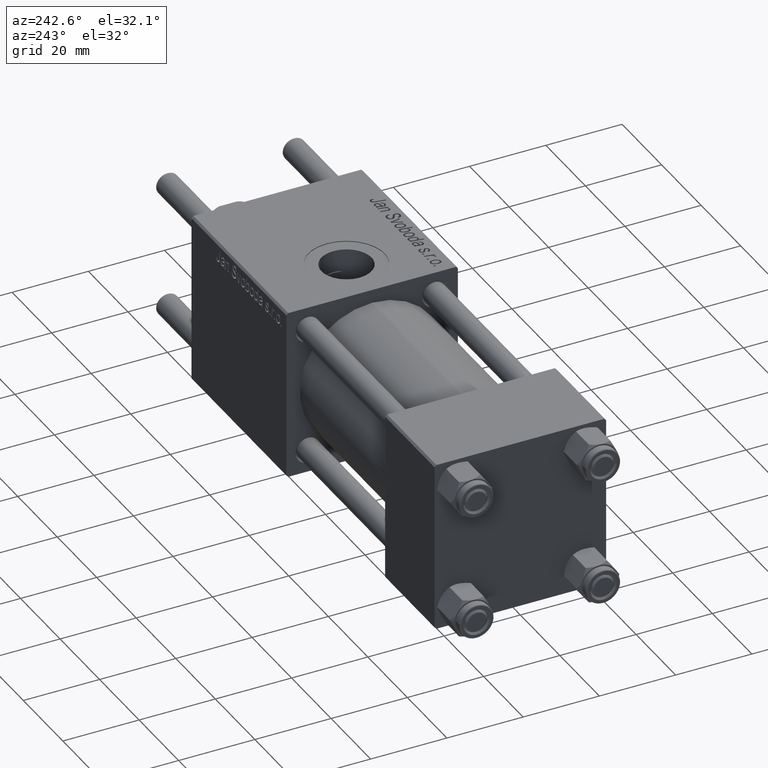
[diagram: clean part render]
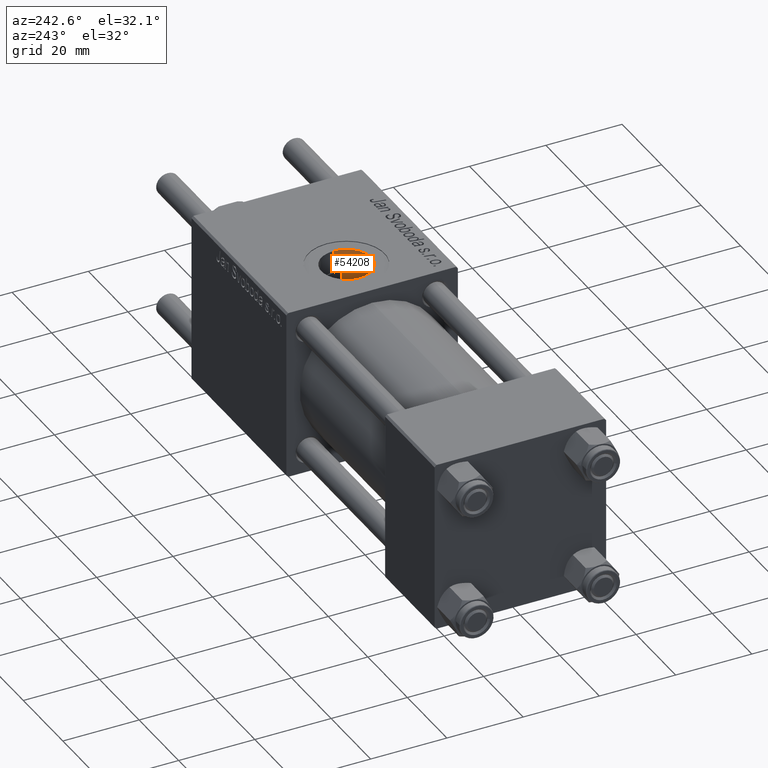
[diagram: same view with one face highlighted and labeled with its STEP entity id]
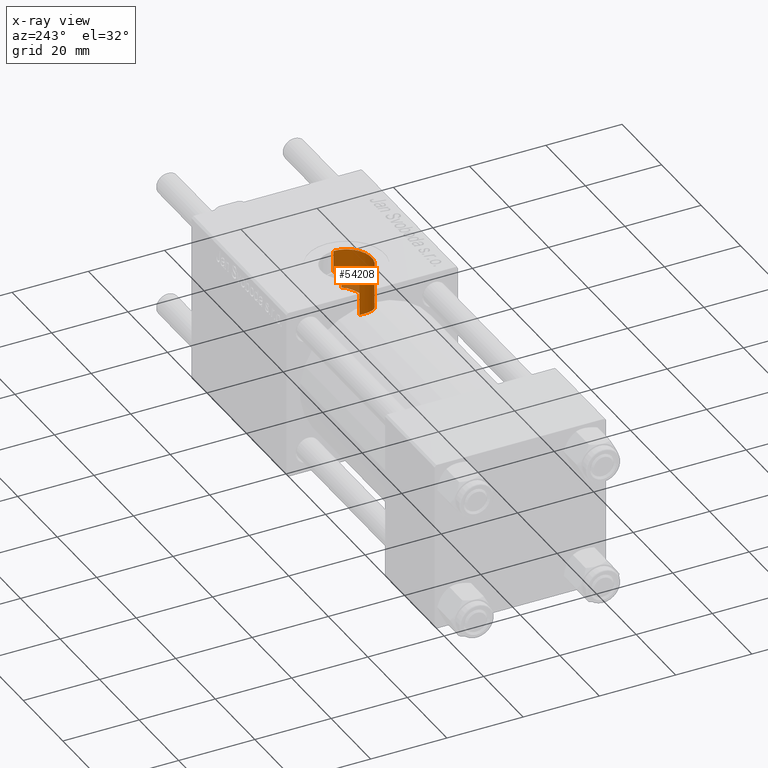
[diagram: x-ray of the same camera — body ghosted, the highlighted face saturated]
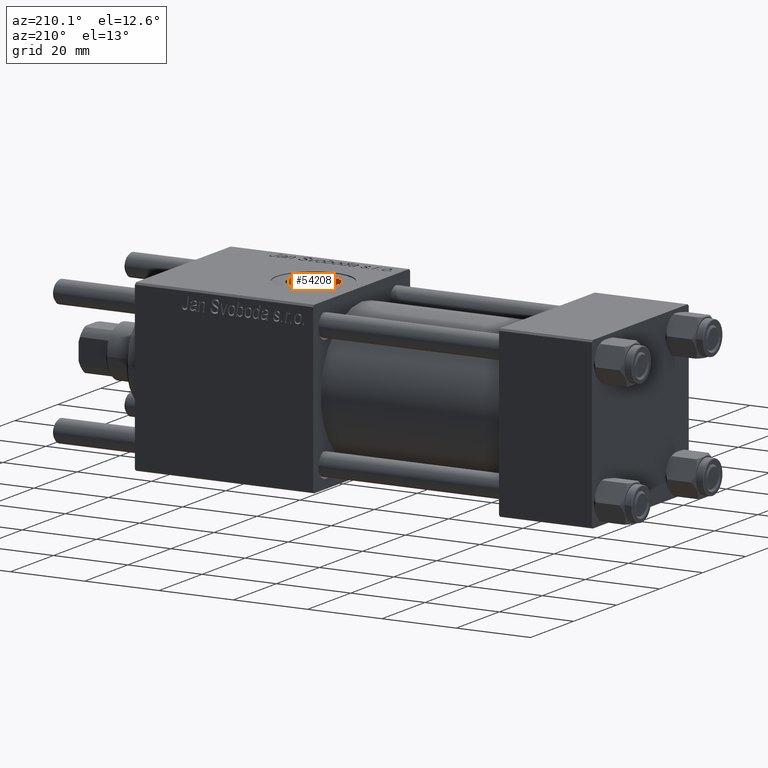
[diagram: same view with one face highlighted and labeled with its STEP entity id]
A machine part, auxiliary view. The second image highlights one B-rep face of the part: STEP entity #54208.
The next image is the same camera in x-ray: the body ghosted, the highlighted face saturated — about 6% of this face is hidden behind the body in this view.
A second angle (auxiliary view) of the same face is appended — the face is thin or edge-on in the first view.
In plain terms, the highlighted cylindrical surface (edge-blend (fillet) strip) has radius 6.58 mm, axis along (0, 0, -1).
Its self-contained STEP definition (entity closure, byte-faithful):
#70 = CARTESIAN_POINT ( 'NONE',  ( 94.30000000000001137, -1.899052395275089067, 45.29999999999999005 ) ) ;
#785 = CARTESIAN_POINT ( 'NONE',  ( 91.24045236004087656, -5.739740685217730842, 10.54091119589231518 ) ) ;
#1071 = CARTESIAN_POINT ( 'NONE',  ( 82.56220931812610786, -3.710026521228334317, 11.41328489595128914 ) ) ;
#1212 = EDGE_LOOP ( 'NONE', ( #17766, #36793, #4599, #27628, #25232, #18845 ) ) ;
#1348 = CARTESIAN_POINT ( 'NONE',  ( 81.60938533297500896, -1.579837376672096338, 11.89712204425859454 ) ) ;
#1994 = DIRECTION ( 'NONE',  ( 1.000000000000000000, 0.000000000000000000, 0.000000000000000000 ) ) ;
#2256 = B_SPLINE_CURVE_WITH_KNOTS ( 'NONE', 3,
 ( #33210, #38102, #47621, #16206, #3279, #12206 ),
 .UNSPECIFIED., .F., .F.,
 ( 4, 2, 4 ),
 ( 0.001922561461481083313, 0.002880296703329207012, 0.003838031945177331362 ),
 .UNSPECIFIED. ) ;
#2720 = CARTESIAN_POINT ( 'NONE',  ( 88.63868773215152430, -6.560960036370746984, 10.04759214048445948 ) ) ;
#3279 = CARTESIAN_POINT ( 'NONE',  ( 94.39288924062448416, -1.590897540048193504, 16.42605488887726395 ) ) ;
#4492 = DIRECTION ( 'NONE',  ( 0.000000000000000000, 0.000000000000000000, -1.000000000000000000 ) ) ;
#4599 = ORIENTED_EDGE ( 'NONE', *, *, #55208, .T. ) ;
#4948 = CARTESIAN_POINT ( 'NONE',  ( 81.42000000000000171, 1.469576107744199801E-15, 12.00000000000000178 ) ) ;
#5400 = CARTESIAN_POINT ( 'NONE',  ( 84.48210468445526544, -5.574052804316229626, 10.62898043420413252 ) ) ;
#6200 = VECTOR ( 'NONE', #4492, 1000.000000000000000 ) ;
#7039 = CARTESIAN_POINT ( 'NONE',  ( 93.68578075181308407, -3.334439790209559717, 11.53293512199652149 ) ) ;
#7191 = AXIS2_PLACEMENT_3D ( 'NONE', #30083, #47678, #8239 ) ;
#7371 = CIRCLE ( 'NONE', #35813, 6.580000000000002736 ) ;
#7923 = CARTESIAN_POINT ( 'NONE',  ( 94.58000000000001251, 2.020172399822898567E-15, 16.50000000000000000 ) ) ;
#8239 = DIRECTION ( 'NONE',  ( -1.000000000000000000, 0.000000000000000000, 0.000000000000000000 ) ) ;
#9425 = CARTESIAN_POINT ( 'NONE',  ( 94.30000000000001137, -1.899052395275089067, 11.84878052796995718 ) ) ;
#10010 = CARTESIAN_POINT ( 'NONE',  ( 87.44221154047806976, -6.559398433601089984, 10.04860498654694823 ) ) ;
#11088 = CARTESIAN_POINT ( 'NONE',  ( 82.15480420465904388, -3.046487603127518984, 11.61204766141661793 ) ) ;
#12206 = CARTESIAN_POINT ( 'NONE',  ( 94.30000000000001137, -1.899052395275089067, 16.39035081991840670 ) ) ;
#13049 = VECTOR ( 'NONE', #17705, 1000.000000000000000 ) ;
#13970 = LINE ( 'NONE', #27209, #13049 ) ;
#14010 = CARTESIAN_POINT ( 'NONE',  ( 82.78969099161481893, -4.023250467623474158, 11.30667168441424941 ) ) ;
#14292 = CARTESIAN_POINT ( 'NONE',  ( 81.98561383412463499, -2.697465198051460789, 11.69882456468388376 ) ) ;
#14338 = EDGE_CURVE ( 'NONE', #50008, #25642, #47885, .T. ) ;
#14588 = CARTESIAN_POINT ( 'NONE',  ( 90.90036750558618905, -5.918981686858812985, 10.44010423036056778 ) ) ;
#14969 = CARTESIAN_POINT ( 'NONE',  ( 94.30000000000001137, -1.899052395275089067, 16.39035081991840670 ) ) ;
#15659 = CARTESIAN_POINT ( 'NONE',  ( 91.88529033867185092, -5.313933040936652752, 10.76007628214585132 ) ) ;
#16206 = CARTESIAN_POINT ( 'NONE',  ( 94.46252323665211748, -1.278516620530523173, 16.45344826064652466 ) ) ;
#17606 = DIRECTION ( 'NONE',  ( -0.000000000000000000, -0.000000000000000000, 1.000000000000000000 ) ) ;
#17705 = DIRECTION ( 'NONE',  ( 0.000000000000000000, 0.000000000000000000, -1.000000000000000000 ) ) ;
#17766 = ORIENTED_EDGE ( 'NONE', *, *, #35531, .F. ) ;
#18324 = CARTESIAN_POINT ( 'NONE',  ( 86.26571117503740993, -6.359577037598437954, 10.17731036340830997 ) ) ;
#18599 = CARTESIAN_POINT ( 'NONE',  ( 93.47922161013028131, -3.663950190651517502, 11.43164576559327905 ) ) ;
#18845 = ORIENTED_EDGE ( 'NONE', *, *, #48524, .F. ) ;
#18884 = CARTESIAN_POINT ( 'NONE',  ( 81.56395315102130894, -1.383303317825534062, 11.92163510970724971 ) ) ;
#19478 = B_SPLINE_CURVE_WITH_KNOTS ( 'NONE', 3,
 ( #9425, #44839, #54048, #7039, #18599, #19972, #40229, #32135, #31838, #15659, #28886, #785, #14588, #22943, #55123, #37815, #53754, #49734, #2720, #20261, #37540, #10010, #27248, #33207, #18324, #35888, #24579, #46477, #55396, #5400, #45134, #31553, #49148, #40524, #14010, #1071, #31276, #11088, #14292, #49445, #23219, #1348, #18884, #28619, #46202, #4948 ),
 .UNSPECIFIED., .F., .F.,
 ( 4, 2, 2, 2, 2, 2, 2, 2, 2, 2, 2, 2, 2, 2, 2, 2, 2, 2, 2, 2, 2, 2, 4 ),
 ( 0.000000000000000000, 0.001192670592735514809, 0.002385341185471029617, 0.003578011778206543776, 0.004174347074574301722, 0.004770682370942059235, 0.005963352963677574260, 0.006559688260045349988, 0.007156023556413125715, 0.008348694149148638138, 0.008945029445516394784, 0.009541364741884149694, 0.01073403533461966125, 0.01133037063098741790, 0.01192670592735517281, 0.01311937652009071906, 0.01431204711282626531, 0.01490838240919403930, 0.01550471770556181503, 0.01669738829829738036, 0.01729372359466516823, 0.01789005889103295263, 0.01908272948376852837 ),
 .UNSPECIFIED. ) ;
#19972 = CARTESIAN_POINT ( 'NONE',  ( 93.01155594446152008, -4.281437546902500557, 11.21500550341173863 ) ) ;
#20261 = CARTESIAN_POINT ( 'NONE',  ( 88.04338309676340657, -6.582852539851475449, 10.03325114525026862 ) ) ;
#22745 = CARTESIAN_POINT ( 'NONE',  ( 94.30000000000001137, -1.899052395275089067, 11.84878052796995718 ) ) ;
#22943 = CARTESIAN_POINT ( 'NONE',  ( 90.36442671337263732, -6.143566170091887990, 10.30844919719950781 ) ) ;
#23219 = CARTESIAN_POINT ( 'NONE',  ( 81.71629779899160440, -1.962378304040151011, 11.84003675942547673 ) ) ;
#23870 = VERTEX_POINT ( 'NONE', #43670 ) ;
#24291 = VECTOR ( 'NONE', #17606, 1000.000000000000000 ) ;
#24354 = CARTESIAN_POINT ( 'NONE',  ( 88.00000000000001421, -5.204170427930420494E-15, 22.29999999999999716 ) ) ;
#24579 = CARTESIAN_POINT ( 'NONE',  ( 85.52064445426731254, -6.098144367882026629, 10.33542248025770860 ) ) ;
#25232 = ORIENTED_EDGE ( 'NONE', *, *, #45640, .T. ) ;
#25642 = VERTEX_POINT ( 'NONE', #14969 ) ;
#27209 = CARTESIAN_POINT ( 'NONE',  ( 94.58000000000001251, -4.398352834091461452E-15, 45.29999999999999005 ) ) ;
#27248 = CARTESIAN_POINT ( 'NONE',  ( 87.24099402833643069, -6.539116494941770164, 10.06186586056366750 ) ) ;
#27628 = ORIENTED_EDGE ( 'NONE', *, *, #14338, .F. ) ;
#28619 = CARTESIAN_POINT ( 'NONE',  ( 81.45594931342614586, -0.7944237263419130501, 11.98017270223897235 ) ) ;
#28886 = CARTESIAN_POINT ( 'NONE',  ( 91.72673468970526756, -5.426328151739157946, 10.70368258044636356 ) ) ;
#30083 = CARTESIAN_POINT ( 'NONE',  ( 88.00000000000001421, -5.204170427930420494E-15, 45.29999999999999005 ) ) ;
#31276 = CARTESIAN_POINT ( 'NONE',  ( 82.45420827143600206, -3.546596150375938006, 11.46524487954329530 ) ) ;
#31553 = CARTESIAN_POINT ( 'NONE',  ( 83.56113700165016667, -4.872522839515975868, 10.96952017908725630 ) ) ;
#31838 = CARTESIAN_POINT ( 'NONE',  ( 92.18893691967821269, -5.078008749725831272, 10.87340577274958164 ) ) ;
#32135 = CARTESIAN_POINT ( 'NONE',  ( 92.33470223076432148, -4.954109770454556028, 10.93054897555022542 ) ) ;
#32323 = CARTESIAN_POINT ( 'NONE',  ( 81.42000000000000171, 1.469576107744199801E-15, 12.00000000000000178 ) ) ;
#33207 = CARTESIAN_POINT ( 'NONE',  ( 86.64933611902864641, -6.452212448331274608, 10.11798947633288925 ) ) ;
#33210 = CARTESIAN_POINT ( 'NONE',  ( 94.58000000000001251, 2.020172399822898567E-15, 16.50000000000000000 ) ) ;
#34923 = VERTEX_POINT ( 'NONE', #32323 ) ;
#35531 = EDGE_CURVE ( 'NONE', #56328, #23870, #7371, .T. ) ;
#35813 = AXIS2_PLACEMENT_3D ( 'NONE', #24354, #50569, #1994 ) ;
#35888 = CARTESIAN_POINT ( 'NONE',  ( 85.70524222956265703, -6.170038997559282201, 10.29252570320665150 ) ) ;
#36793 = ORIENTED_EDGE ( 'NONE', *, *, #43138, .T. ) ;
#37540 = CARTESIAN_POINT ( 'NONE',  ( 87.84379216343923247, -6.581218343749225319, 10.03432783490170976 ) ) ;
#37815 = CARTESIAN_POINT ( 'NONE',  ( 89.80612331289052008, -6.330331454284490178, 10.19469476613940273 ) ) ;
#38102 = CARTESIAN_POINT ( 'NONE',  ( 94.58000000000002672, -0.3226077776615777215, 16.50000000000000711 ) ) ;
#40229 = CARTESIAN_POINT ( 'NONE',  ( 92.75461516124364891, -4.564627351372486430, 11.10155823484087279 ) ) ;
#40524 = CARTESIAN_POINT ( 'NONE',  ( 82.90943709968694009, -4.173635198167837679, 11.25187747779291314 ) ) ;
#41587 = VERTEX_POINT ( 'NONE', #7923 ) ;
#43138 = EDGE_CURVE ( 'NONE', #56328, #41587, #13970, .T. ) ;
#43670 = CARTESIAN_POINT ( 'NONE',  ( 81.42000000000000171, -5.204170427930420494E-15, 22.29999999999999716 ) ) ;
#43937 = LINE ( 'NONE', #53420, #6200 ) ;
#44325 = CARTESIAN_POINT ( 'NONE',  ( 94.58000000000001251, -4.398352834091461452E-15, 22.29999999999999716 ) ) ;
#44839 = CARTESIAN_POINT ( 'NONE',  ( 94.18477677513206459, -2.281298992827701877, 11.78751630630980607 ) ) ;
#45134 = CARTESIAN_POINT ( 'NONE',  ( 84.16042478392878934, -5.357485016297855118, 10.74100582260112979 ) ) ;
#45640 = EDGE_CURVE ( 'NONE', #50008, #34923, #19478, .T. ) ;
#46202 = CARTESIAN_POINT ( 'NONE',  ( 81.41999999999998749, -0.3987589306235777564, 12.00000000000000178 ) ) ;
#46477 = CARTESIAN_POINT ( 'NONE',  ( 85.16320872901937378, -5.940301670670843137, 10.42694291910975046 ) ) ;
#47387 = CYLINDRICAL_SURFACE ( 'NONE', #7191, 6.580000000000002736 ) ;
#47621 = CARTESIAN_POINT ( 'NONE',  ( 94.55609068154467423, -0.6453575044926712634, 16.49042383039745374 ) ) ;
#47678 = DIRECTION ( 'NONE',  ( 0.000000000000000000, 0.000000000000000000, -1.000000000000000000 ) ) ;
#47885 = LINE ( 'NONE', #70, #24291 ) ;
#48524 = EDGE_CURVE ( 'NONE', #23870, #34923, #43937, .T. ) ;
#49148 = CARTESIAN_POINT ( 'NONE',  ( 83.28639562774002059, -4.607057570676570180, 11.08471608617320392 ) ) ;
#49445 = CARTESIAN_POINT ( 'NONE',  ( 81.77783752250837779, -2.149251954852693824, 11.80743069880358753 ) ) ;
#49734 = CARTESIAN_POINT ( 'NONE',  ( 89.03095050380548514, -6.510856269794945916, 10.08062642345327120 ) ) ;
#50008 = VERTEX_POINT ( 'NONE', #22745 ) ;
#50569 = DIRECTION ( 'NONE',  ( -0.000000000000000000, -0.000000000000000000, -1.000000000000000000 ) ) ;
#51982 = FACE_OUTER_BOUND ( 'NONE', #1212, .T. ) ;
#53420 = CARTESIAN_POINT ( 'NONE',  ( 81.42000000000000171, -5.204170427930420494E-15, 45.29999999999999005 ) ) ;
#53754 = CARTESIAN_POINT ( 'NONE',  ( 89.61262682924856904, -6.382418177023039263, 10.16205234327171070 ) ) ;
#54048 = CARTESIAN_POINT ( 'NONE',  ( 94.03789257063225193, -2.643944927135372325, 11.71053527662117055 ) ) ;
#54208 = ADVANCED_FACE ( 'NONE', ( #51982 ), #47387, .F. ) ;
#55123 = CARTESIAN_POINT ( 'NONE',  ( 90.18144946988459765, -6.210994763547172504, 10.26783529976223264 ) ) ;
#55208 = EDGE_CURVE ( 'NONE', #41587, #25642, #2256, .T. ) ;
#55396 = CARTESIAN_POINT ( 'NONE',  ( 84.98945031834360009, -5.854084355677485974, 10.47573476137173643 ) ) ;
#56328 = VERTEX_POINT ( 'NONE', #44325 ) ;